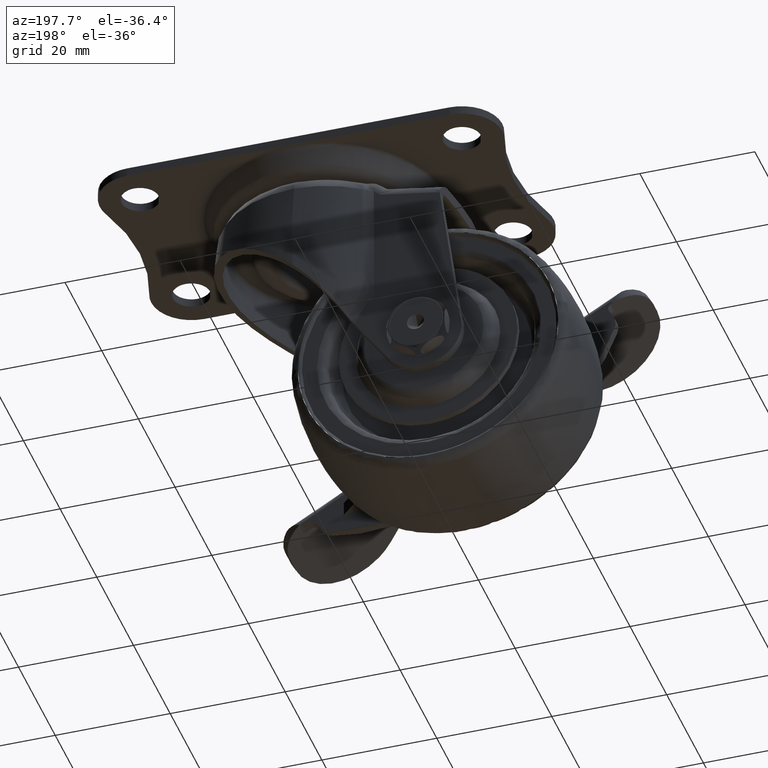
[diagram: clean part render]
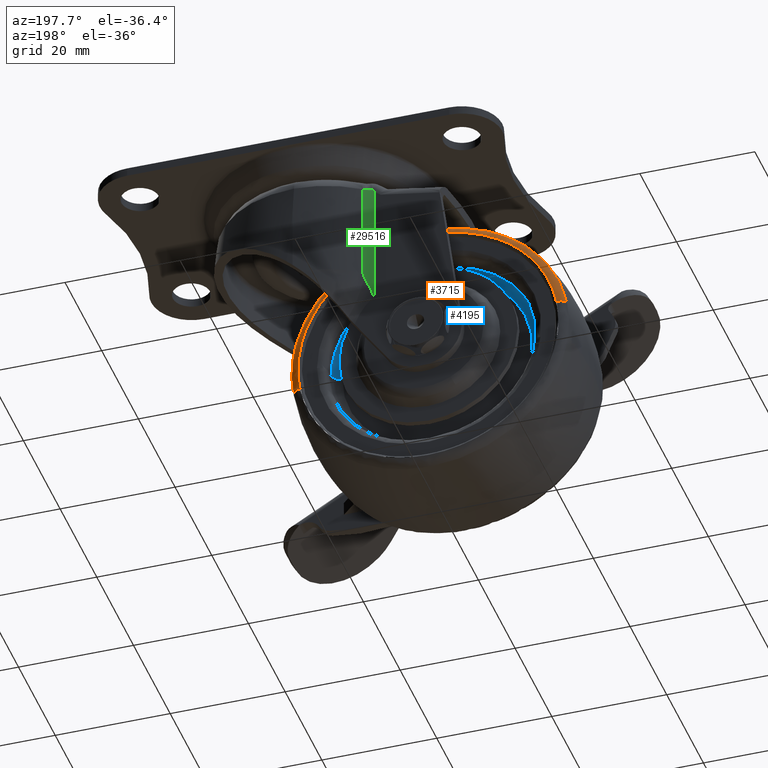
[diagram: same view with three faces highlighted in distinct colors, each labeled with its STEP entity id]
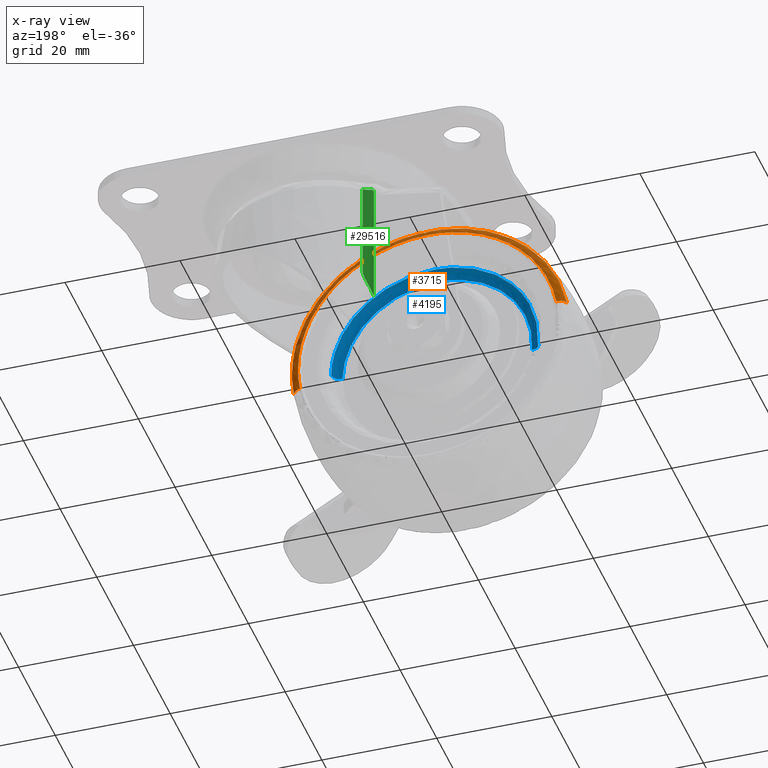
[diagram: x-ray of the same camera — body ghosted, the three highlighted faces saturated]
A machine part, auxiliary view with three faces highlighted in distinct colors.
The next image is the same camera in x-ray (body ghosted, the three faces saturated) — at least one of them is partly hidden behind the body in this view.
Their STEP definitions:

[orange] entity #3715 — the highlighted face is a freeform B-spline surface patch.
#3505=CARTESIAN_POINT('',(2.759096477785932,9.278345521659144,-42.723570209472932));
#3506=VERTEX_POINT('',#3505);
#3543=CARTESIAN_POINT('',(-44.759092877287898,9.278354426551987,-34.276417072923678));
#3544=VERTEX_POINT('',#3543);
#3553=CARTESIAN_POINT('',(-43.307897173137121,10.499999999999980,-34.534391795285103));
#3554=VERTEX_POINT('',#3553);
#3555=CARTESIAN_POINT('',(-44.759092877287898,9.278354426551987,-34.276417072923678));
#3556=CARTESIAN_POINT('',(-44.727588617504232,9.448397851253310,-34.282017491031432));
#3557=CARTESIAN_POINT('',(-44.601945361940032,9.787390261994741,-34.304352717027307));
#3558=CARTESIAN_POINT('',(-44.260683762759193,10.185511011971650,-34.365017771417648));
#3559=CARTESIAN_POINT('',(-43.808237848931192,10.441366916427720,-34.445447729034612));
#3560=CARTESIAN_POINT('',(-43.478255713883250,10.500097939494641,-34.504107666757882));
#3561=CARTESIAN_POINT('',(-43.307897173137121,10.499999999999980,-34.534391795285103));
#3562=B_SPLINE_CURVE_WITH_KNOTS('',3,(#3555,#3556,#3557,#3558,#3559,#3560,#3561),.UNSPECIFIED.,.F.,.U.,(4,1,1,1,4),(0.000000224902389,0.519064679094428,1.070527392200107,1.557193587479023,2.076258041670863),.UNSPECIFIED.);
#3563=EDGE_CURVE('',#3544,#3554,#3562,.T.);
#3586=CARTESIAN_POINT('',(1.307897173137128,10.499999999999980,-42.465608204714897));
#3587=VERTEX_POINT('',#3586);
#3604=CARTESIAN_POINT('',(2.759096477785932,9.278345521659144,-42.723570209472932));
#3605=CARTESIAN_POINT('',(2.721771017791230,9.480318267251088,-42.716936077003147));
#3606=CARTESIAN_POINT('',(2.571876132796573,9.847530803003286,-42.690292164308786));
#3607=CARTESIAN_POINT('',(2.190604175442419,10.237946892284580,-42.622518406852862));
#3608=CARTESIAN_POINT('',(1.755039080082255,10.453782369535331,-42.545092639425292));
#3609=CARTESIAN_POINT('',(1.456955621220119,10.500063120721750,-42.492105066452822));
#3610=CARTESIAN_POINT('',(1.307897173137128,10.499999999999980,-42.465608204714897));
#3611=B_SPLINE_CURVE_WITH_KNOTS('',3,(#3604,#3605,#3606,#3607,#3608,#3609,#3610),.UNSPECIFIED.,.F.,.U.,(4,1,1,1,4),(0.000000224911749,0.616399520203313,1.167871849467737,1.622086624845331,2.076266828436725),.UNSPECIFIED.);
#3612=EDGE_CURVE('',#3506,#3587,#3611,.T.);
#3617=CARTESIAN_POINT('',(-44.773466173999324,9.185021071705307,-34.273861974993984));
#3618=CARTESIAN_POINT('',(-40.547328148993330,9.185021071705309,-10.500395800994660));
#3619=CARTESIAN_POINT('',(-16.773861974993988,9.185021071705307,-14.726533826000667));
#3620=CARTESIAN_POINT('',(6.999604199005342,9.185021071705309,-18.952671851006677));
#3621=CARTESIAN_POINT('',(2.773466173999331,9.185021071705307,-42.726138025006016));
#3622=CARTESIAN_POINT('',(-44.602024673253347,10.585939127863654,-34.304338618158418));
#3623=CARTESIAN_POINT('',(-40.406363291411779,10.585939127863655,-10.702313944905079));
#3624=CARTESIAN_POINT('',(-16.804338618158429,10.585939127863654,-14.897975326746657));
#3625=CARTESIAN_POINT('',(6.797686055094921,10.585939127863655,-19.093636708588235));
#3626=CARTESIAN_POINT('',(2.602024673253345,10.585939127863654,-42.695661381841575));
#3627=CARTESIAN_POINT('',(-43.214876567783676,10.497021596120133,-34.550927790807222));
#3628=CARTESIAN_POINT('',(-39.265804358590884,10.497021596120129,-12.336051223023539));
#3629=CARTESIAN_POINT('',(-17.050927790807219,10.497021596120133,-16.285123432216334));
#3630=CARTESIAN_POINT('',(5.163948776976454,10.497021596120129,-20.234195641409116));
#3631=CARTESIAN_POINT('',(1.214876567783669,10.497021596120133,-42.449072209192792));
#3639=(BOUNDED_SURFACE()B_SPLINE_SURFACE(2,2,((#3617,#3622,#3627),(#3618,#3623,#3628),(#3619,#3624,#3629),(#3620,#3625,#3630),(#3621,#3626,#3631)),.UNSPECIFIED.,.F.,.F.,.U.)B_SPLINE_SURFACE_WITH_KNOTS((3,2,3),(3,3),(0.0,40.006698469723759,80.013396939447517),(0.0,2.379381695528104),.UNSPECIFIED.)GEOMETRIC_REPRESENTATION_ITEM()RATIONAL_B_SPLINE_SURFACE(((0.914050165617063,0.665387780648349,0.913396013996983),(0.646331070452512,0.470500211815115,0.645868515406030),(0.914050165617063,0.665387780648349,0.913396013996983),(0.646331070452512,0.470500211815115,0.645868515406030),(0.914050165617063,0.665387780648349,0.913396013996983)))REPRESENTATION_ITEM('')SURFACE());
#3640=CARTESIAN_POINT('',(-21.0,9.278350515463870,-14.368419405516850));
#3641=VERTEX_POINT('',#3640);
#3642=CARTESIAN_POINT('',(-21.0,9.278350515463870,-14.368419405516850));
#3643=CARTESIAN_POINT('',(-19.188788587890659,9.278350541425967,-14.368088750070360));
#3644=CARTESIAN_POINT('',(-16.444740097442288,9.278350522211465,-14.678850489556190));
#3645=CARTESIAN_POINT('',(-12.855206390980570,9.278350377046300,-15.723488641555150));
#3646=CARTESIAN_POINT('',(-10.325599722272541,9.278350210605790,-16.800656168095131));
#3647=CARTESIAN_POINT('',(-7.408201191073819,9.278349941691349,-18.452093750207300));
#3648=CARTESIAN_POINT('',(-4.624630409048312,9.278349573581481,-20.620717371127611));
#3649=CARTESIAN_POINT('',(-2.208339196485671,9.278349112111359,-23.257755953251539));
#3650=CARTESIAN_POINT('',(-0.335781954438647,9.278348640852641,-25.905500340080170));
#3651=CARTESIAN_POINT('',(1.283697483088194,9.278348087291535,-28.971553195050092));
#3652=CARTESIAN_POINT('',(2.411261280025404,9.278347475123182,-32.311787881297739));
#3653=CARTESIAN_POINT('',(2.999181492593903,9.278346883510952,-35.501713141359403));
#3654=CARTESIAN_POINT('',(3.221366934726062,9.278346257269723,-38.847934748393193));
#3655=CARTESIAN_POINT('',(3.018625339629414,9.278345799801743,-41.264591207978071));
#3656=CARTESIAN_POINT('',(2.759096477785932,9.278345521659144,-42.723570209472932));
#3657=B_SPLINE_CURVE_WITH_KNOTS('',3,(#3642,#3643,#3644,#3645,#3646,#3647,#3648,#3649,#3650,#3651,#3652,#3653,#3654,#3655,#3656),.UNSPECIFIED.,.F.,.U.,(4,1,1,1,1,1,1,1,1,1,1,1,4),(0.000000090873982,5.433541149917254,8.232666424341936,11.196444952601279,13.666264547258949,18.276589631907100,21.734257466979219,24.368687800939171,27.991101870845540,32.107450665927182,34.906578468674773,37.705705199965429,42.151316158055010),.UNSPECIFIED.);
#3658=EDGE_CURVE('',#3641,#3506,#3657,.T.);
#3659=ORIENTED_EDGE('',*,*,#3658,.T.);
#3660=ORIENTED_EDGE('',*,*,#3612,.T.);
#3661=CARTESIAN_POINT('',(-21.0,10.500000000000000,-15.842367200000000));
#3662=VERTEX_POINT('',#3661);
#3663=CARTESIAN_POINT('',(-21.0,10.500000000000000,-15.842367200000000));
#3664=CARTESIAN_POINT('',(-19.917839468591051,10.500000000000000,-15.842324376036910));
#3665=CARTESIAN_POINT('',(-17.547371683405402,10.500000000000020,-16.012479710729000));
#3666=CARTESIAN_POINT('',(-13.869984136138900,10.500000000000011,-16.867810159061332));
#3667=CARTESIAN_POINT('',(-10.446787048611290,10.499999999999901,-18.339416644185221));
#3668=CARTESIAN_POINT('',(-7.439198729414627,10.500000000000190,-20.251665296559171));
#3669=CARTESIAN_POINT('',(-5.243838751105595,10.499999999999890,-22.137173949070320));
#3670=CARTESIAN_POINT('',(-3.368726143651366,10.500000000000041,-24.197549064953769));
#3671=CARTESIAN_POINT('',(-1.727965880079672,10.499999999999931,-26.451580789455381));
#3672=CARTESIAN_POINT('',(-0.065532208682511,10.500000000000030,-29.547581741638400));
#3673=CARTESIAN_POINT('',(1.114594152754655,10.499999999999860,-33.083103539470613));
#3674=CARTESIAN_POINT('',(1.613860162771141,10.500000000000220,-36.352590290536590));
#3675=CARTESIAN_POINT('',(1.701382166590912,10.499999999999410,-39.395197907599581));
#3676=CARTESIAN_POINT('',(1.515426685954867,10.500000000000890,-41.298685365498592));
#3677=CARTESIAN_POINT('',(1.307897173137128,10.499999999999980,-42.465608204714897));
#3678=B_SPLINE_CURVE_WITH_KNOTS('',3,(#3663,#3664,#3665,#3666,#3667,#3668,#3669,#3670,#3671,#3672,#3673,#3674,#3675,#3676,#3677),.UNSPECIFIED.,.F.,.U.,(4,1,1,1,1,1,1,1,1,1,1,1,4),(0.000000090037830,3.246488764020384,7.111429133425162,11.285558714741221,14.377516750925791,17.778644095271009,19.942921211220121,22.725671490906560,26.126812945410560,30.455545266937310,33.856680941096123,36.021055440638058,39.576742104665762),.UNSPECIFIED.);
#3679=EDGE_CURVE('',#3662,#3587,#3678,.T.);
#3680=ORIENTED_EDGE('',*,*,#3679,.F.);
#3681=CARTESIAN_POINT('',(-43.307897173137121,10.499999999999980,-34.534391795285103));
#3682=CARTESIAN_POINT('',(-43.106300841236113,10.499999999999989,-33.399925157267681));
#3683=CARTESIAN_POINT('',(-42.570633942650893,10.499999999999970,-31.321745283571239));
#3684=CARTESIAN_POINT('',(-41.478601680057317,10.500000000000000,-28.694102747069170));
#3685=CARTESIAN_POINT('',(-40.181735793889302,10.500000000000000,-26.351362972604811));
#3686=CARTESIAN_POINT('',(-38.510871707932012,10.500000000000011,-23.997268947258931));
#3687=CARTESIAN_POINT('',(-36.032414073689253,10.499999999999940,-21.398189136369201));
#3688=CARTESIAN_POINT('',(-33.109875334179328,10.499999999999821,-19.233560100035341));
#3689=CARTESIAN_POINT('',(-29.628331493709041,10.500000000000290,-17.435330913905879));
#3690=CARTESIAN_POINT('',(-25.691194712130901,10.499999999999719,-16.171676283312980));
#3691=CARTESIAN_POINT('',(-22.604924227473450,10.500000000000201,-15.842093856873110));
#3692=CARTESIAN_POINT('',(-21.0,10.500000000000000,-15.842367200000000));
#3693=B_SPLINE_CURVE_WITH_KNOTS('',3,(#3681,#3682,#3683,#3684,#3685,#3686,#3687,#3688,#3689,#3690,#3691,#3692),.UNSPECIFIED.,.F.,.U.,(4,1,1,1,1,1,1,1,1,4),(0.000000059278598,3.456709241584637,6.419640162571220,8.518384221513504,11.481314709105380,15.061523730458379,19.258919811304729,22.345315732999708,26.789709012800522,31.604426521980319),.UNSPECIFIED.);
#3694=EDGE_CURVE('',#3554,#3662,#3693,.T.);
#3695=ORIENTED_EDGE('',*,*,#3694,.F.);
#3696=ORIENTED_EDGE('',*,*,#3563,.F.);
#3697=CARTESIAN_POINT('',(-44.759092877287898,9.278354426551987,-34.276417072923678));
#3698=CARTESIAN_POINT('',(-44.513741403454837,9.278354274308228,-32.895524602385159));
#3699=CARTESIAN_POINT('',(-43.884213649116113,9.278353998521810,-30.559113027670879));
#3700=CARTESIAN_POINT('',(-42.580024500858237,9.278353604559316,-27.582612422960729));
#3701=CARTESIAN_POINT('',(-40.923604734118307,9.278353193273935,-24.738198106979709));
#3702=CARTESIAN_POINT('',(-38.630977056956709,9.278352722737312,-21.838551582638111));
#3703=CARTESIAN_POINT('',(-35.699265350758758,9.278352226903154,-19.243002176901811));
#3704=CARTESIAN_POINT('',(-33.040394588185812,9.278351838305378,-17.530919710810409));
#3705=CARTESIAN_POINT('',(-30.449966585172561,9.278351495345460,-16.237339062257458));
#3706=CARTESIAN_POINT('',(-28.054925174739260,9.278351209205100,-15.366547361174311));
#3707=CARTESIAN_POINT('',(-24.769186528500079,9.278350855710263,-14.582315104123690));
#3708=CARTESIAN_POINT('',(-22.534017457321109,9.278350645637087,-14.368233660450670));
#3709=CARTESIAN_POINT('',(-21.0,9.278350515463870,-14.368419405516850));
#3710=B_SPLINE_CURVE_WITH_KNOTS('',3,(#3697,#3698,#3699,#3700,#3701,#3702,#3703,#3704,#3705,#3706,#3707,#3708,#3709),.UNSPECIFIED.,.F.,.U.,(4,1,1,1,1,1,1,1,1,1,4),(0.000000057324932,4.207541843063844,7.231723763356364,9.729960257396712,14.069013187969031,18.276503312447630,21.432193854902280,23.535970624092549,26.954614485566911,29.058391254755811,33.660390050188219),.UNSPECIFIED.);
#3711=EDGE_CURVE('',#3544,#3641,#3710,.T.);
#3712=ORIENTED_EDGE('',*,*,#3711,.T.);
#3713=EDGE_LOOP('',(#3659,#3660,#3680,#3695,#3696,#3712));
#3714=FACE_OUTER_BOUND('',#3713,.T.);
#3715=ADVANCED_FACE('',(#3714),#3639,.T.);

[blue] entity #4195 — the highlighted face is a freeform B-spline surface patch.
#1475=CARTESIAN_POINT('',(-34.489159836170927,6.999999999991378,-26.565799407433751));
#1476=VERTEX_POINT('',#1475);
#1482=CARTESIAN_POINT('',(-38.966780266843330,6.999999999323070,-39.755939374470330));
#1483=VERTEX_POINT('',#1482);
#1484=CARTESIAN_POINT('',(-38.966780266843330,6.999999999323070,-39.755939374470330));
#1485=CARTESIAN_POINT('',(-39.076406385628879,6.999999999418946,-38.195400380189227));
#1486=CARTESIAN_POINT('',(-38.939307079297848,6.999999999549182,-35.945921983247779));
#1487=CARTESIAN_POINT('',(-38.128786880356380,6.999999999719877,-32.726321873008253));
#1488=CARTESIAN_POINT('',(-36.899032665652150,6.999999999864500,-29.754644018334449));
#1489=CARTESIAN_POINT('',(-35.451937624685790,6.999999999951841,-27.653506682725371));
#1490=CARTESIAN_POINT('',(-34.489159836170927,6.999999999991378,-26.565799407433751));
#1491=B_SPLINE_CURVE_WITH_KNOTS('',3,(#1484,#1485,#1486,#1487,#1488,#1489,#1490),.UNSPECIFIED.,.F.,.U.,(4,1,1,1,4),(0.000000021543839,4.692946031788063,6.704215220559986,9.944557438145004,14.302287091047120),.UNSPECIFIED.);
#1492=EDGE_CURVE('',#1483,#1476,#1491,.T.);
#1512=CARTESIAN_POINT('',(-2.990798043158804,6.999999999316543,-38.273677780403297));
#1513=VERTEX_POINT('',#1512);
#1529=CARTESIAN_POINT('',(-21.0,7.0,-20.489376000000000));
#1530=VERTEX_POINT('',#1529);
#1531=CARTESIAN_POINT('',(-21.0,7.0,-20.489376000000000));
#1532=CARTESIAN_POINT('',(-20.232620391467979,7.000000000000012,-20.489365575671389));
#1533=CARTESIAN_POINT('',(-18.478569503926209,6.999999999995658,-20.601583206443848));
#1534=CARTESIAN_POINT('',(-16.111787868075240,6.999999999976351,-21.106052095384491));
#1535=CARTESIAN_POINT('',(-13.427215761334249,6.999999999938980,-22.076657103699699));
#1536=CARTESIAN_POINT('',(-11.109302131959829,6.999999999890100,-23.349381653538760));
#1537=CARTESIAN_POINT('',(-9.094782598848624,6.999999999829182,-24.934257405609522));
#1538=CARTESIAN_POINT('',(-7.428673907965291,6.999999999765964,-26.579447184111821));
#1539=CARTESIAN_POINT('',(-5.965901234185523,6.999999999693632,-28.461012358074768));
#1540=CARTESIAN_POINT('',(-4.764424432180773,6.999999999611417,-30.600619227621252));
#1541=CARTESIAN_POINT('',(-3.957523317729330,6.999999999535948,-32.563935448274393));
#1542=CARTESIAN_POINT('',(-3.238394858196305,6.999999999439991,-35.060874379830892));
#1543=CARTESIAN_POINT('',(-3.006652641298375,6.999999999365809,-36.994770964123092));
#1544=CARTESIAN_POINT('',(-2.990798043158804,6.999999999316543,-38.273677780403297));
#1545=B_SPLINE_CURVE_WITH_KNOTS('',3,(#1531,#1532,#1533,#1534,#1535,#1536,#1537,#1538,#1539,#1540,#1541,#1542,#1543,#1544),.UNSPECIFIED.,.F.,.U.,(4,1,1,1,1,1,1,1,1,1,1,4),(0.000000081235733,2.302148305600756,5.262129301312655,7.235440499871746,10.853169386549940,13.155391867982230,14.909345256509710,17.869323268271120,20.281153669019400,22.254461720927139,24.227782522889839,28.064737169980280),.UNSPECIFIED.);
#1546=EDGE_CURVE('',#1530,#1513,#1545,.T.);
#1548=CARTESIAN_POINT('',(-23.876817258640511,7.000000000061565,-20.720615890032519));
#1549=VERTEX_POINT('',#1548);
#1550=CARTESIAN_POINT('',(-23.876817258640511,7.000000000061565,-20.720615890032519));
#1551=CARTESIAN_POINT('',(-22.926124318557299,7.000000000045851,-20.566735401296938));
#1552=CARTESIAN_POINT('',(-21.963065108815840,7.000000000025210,-20.489346122865999));
#1553=CARTESIAN_POINT('',(-21.0,7.0,-20.489376000000000));
#1554=B_SPLINE_CURVE_WITH_KNOTS('',3,(#1550,#1551,#1552,#1553),.UNSPECIFIED.,.F.,.U.,(4,4),(5.330345E-010,2.889204836596740),.UNSPECIFIED.);
#1555=EDGE_CURVE('',#1549,#1530,#1554,.T.);
#1591=CARTESIAN_POINT('',(-34.489159836170927,6.999999999991378,-26.565799407433751));
#1592=CARTESIAN_POINT('',(-33.764284629112971,7.000000000021200,-25.746315479776300));
#1593=CARTESIAN_POINT('',(-32.117509031916889,7.000000000070415,-24.195794699179871));
#1594=CARTESIAN_POINT('',(-29.391950011850678,7.000000000102584,-22.457228225955131));
#1595=CARTESIAN_POINT('',(-26.586206178970301,7.000000000097944,-21.301176850330091));
#1596=CARTESIAN_POINT('',(-24.766253381780889,7.000000000076284,-20.864483188727100));
#1597=CARTESIAN_POINT('',(-23.876817258640511,7.000000000061565,-20.720615890032519));
#1598=B_SPLINE_CURVE_WITH_KNOTS('',3,(#1591,#1592,#1593,#1594,#1595,#1596,#1597),.UNSPECIFIED.,.F.,.U.,(4,1,1,1,4),(6.194460E-009,3.282219089059614,6.757500765484806,9.653584074430803,12.356583783096591),.UNSPECIFIED.);
#1599=EDGE_CURVE('',#1476,#1549,#1598,.T.);
#4100=CARTESIAN_POINT('',(-37.366379040385127,5.503631023676504,-39.644064948780347));
#4101=CARTESIAN_POINT('',(-37.399121656099688,5.503631023676502,-39.175666664111830));
#4102=CARTESIAN_POINT('',(-37.405021930796465,5.503631023676502,-38.706162437589050));
#4103=CARTESIAN_POINT('',(-37.611184368385523,5.503631023676505,-22.301140506792606));
#4104=CARTESIAN_POINT('',(-21.206162437589054,5.503631023676502,-22.094978069203542));
#4105=CARTESIAN_POINT('',(-4.801140506792604,5.503631023676505,-21.888815631614484));
#4106=CARTESIAN_POINT('',(-4.594978069203541,5.503631023676502,-38.293837562410950));
#4107=CARTESIAN_POINT('',(-39.082803091629060,5.383693084090333,-39.764048763735779));
#4108=CARTESIAN_POINT('',(-39.118979589265479,5.383693084090332,-39.246527207549285));
#4109=CARTESIAN_POINT('',(-39.125498655288879,5.383693084090331,-38.727783723853271));
#4110=CARTESIAN_POINT('',(-39.353282379142158,5.383693084090332,-20.602285068564392));
#4111=CARTESIAN_POINT('',(-21.227783723853282,5.383693084090331,-20.374501344711113));
#4112=CARTESIAN_POINT('',(-3.102285068564394,5.383693084090332,-20.146717620857832));
#4113=CARTESIAN_POINT('',(-2.874501344711113,5.383693084090331,-38.272216276146715));
#4114=CARTESIAN_POINT('',(-38.963158218160324,7.104305737678883,-39.755685184614272));
#4115=CARTESIAN_POINT('',(-38.999095353986505,7.104305737678883,-39.241587809999288));
#4116=CARTESIAN_POINT('',(-39.005571286607100,7.104305737678882,-38.726276592758573));
#4117=CARTESIAN_POINT('',(-39.231847879365695,7.104305737678882,-20.720705306151487));
#4118=CARTESIAN_POINT('',(-21.226276592758587,7.104305737678882,-20.494428713392889));
#4119=CARTESIAN_POINT('',(-3.220705306151477,7.104305737678882,-20.268152120634323));
#4120=CARTESIAN_POINT('',(-2.994428713392894,7.104305737678882,-38.273723407241434));
#4128=(BOUNDED_SURFACE()B_SPLINE_SURFACE(2,2,((#4100,#4107,#4114),(#4101,#4108,#4115),(#4102,#4109,#4116),(#4103,#4110,#4117),(#4104,#4111,#4118),(#4105,#4112,#4119),(#4106,#4113,#4120)),.UNSPECIFIED.,.F.,.F.,.U.)B_SPLINE_SURFACE_WITH_KNOTS((3,2,2,3),(3,3),(0.0,1.193397379646738,31.028360323653072,60.863323267659403),(0.0,2.733562205864522),.UNSPECIFIED.)GEOMETRIC_REPRESENTATION_ITEM()RATIONAL_B_SPLINE_SURFACE(((0.895730018595575,0.587800071602471,0.895729757417794),(0.905606779348395,0.594281444959602,0.905606515290739),(0.916342387972045,0.601326415415735,0.916342120784090),(0.647951916423707,0.425201986047065,0.647951727493292),(0.916342387972045,0.601326415415735,0.916342120784090),(0.647951916423707,0.425201986047065,0.647951727493292),(0.916342387972045,0.601326415415735,0.916342120784090)))REPRESENTATION_ITEM('')SURFACE());
#4129=ORIENTED_EDGE('',*,*,#1555,.T.);
#4130=ORIENTED_EDGE('',*,*,#1546,.T.);
#4131=CARTESIAN_POINT('',(-4.490679594945762,5.500000000000000,-38.292526839554583));
#4132=VERTEX_POINT('',#4131);
#4133=CARTESIAN_POINT('',(-4.490679594945762,5.500000000000000,-38.292526839554583));
#4134=CARTESIAN_POINT('',(-4.294314055137503,5.499787689452652,-38.290059107583879));
#4135=CARTESIAN_POINT('',(-3.914054968667608,5.575787674044185,-38.285280379571532));
#4136=CARTESIAN_POINT('',(-3.495595992337163,5.847948143116714,-38.280021592319358));
#4137=CARTESIAN_POINT('',(-3.241360498790990,6.150421139526097,-38.276826606785527));
#4138=CARTESIAN_POINT('',(-3.049491037081933,6.509258309148224,-38.274415377149523));
#4139=CARTESIAN_POINT('',(-2.990577411340136,6.803609006373859,-38.273675007727959));
#4140=CARTESIAN_POINT('',(-2.990798043158804,6.999999999316543,-38.273677780403297));
#4141=B_SPLINE_CURVE_WITH_KNOTS('',3,(#4133,#4134,#4135,#4136,#4137,#4138,#4139,#4140),.UNSPECIFIED.,.F.,.U.,(4,1,1,1,1,4),(0.000000285956295,0.589064493924789,1.141351331199181,1.472636971397073,1.767190287693384,2.356253611292268),.UNSPECIFIED.);
#4142=EDGE_CURVE('',#4132,#1513,#4141,.T.);
#4143=ORIENTED_EDGE('',*,*,#4142,.F.);
#4144=CARTESIAN_POINT('',(-21.0,5.500000000000000,-21.989376000000000));
#4145=VERTEX_POINT('',#4144);
#4146=CARTESIAN_POINT('',(-21.0,5.500000000000000,-21.989376000000000));
#4147=CARTESIAN_POINT('',(-19.961528376282271,5.500000000000006,-21.989272551277889));
#4148=CARTESIAN_POINT('',(-17.851107297544502,5.499999999999976,-22.189102230098658));
#4149=CARTESIAN_POINT('',(-15.074140169529480,5.500000000000048,-23.005909194134251));
#4150=CARTESIAN_POINT('',(-12.659166214326570,5.499999999999910,-24.182931075127151));
#4151=CARTESIAN_POINT('',(-10.745347300673810,5.500000000000092,-25.490991702520891));
#4152=CARTESIAN_POINT('',(-9.183066439364795,5.499999999999934,-26.916274505593169));
#4153=CARTESIAN_POINT('',(-7.664476533290276,5.500000000000030,-28.662990307336699));
#4154=CARTESIAN_POINT('',(-6.358121339953237,5.499999999999985,-30.703297062691739));
#4155=CARTESIAN_POINT('',(-5.385416629583397,5.500000000000003,-32.990647317146568));
#4156=CARTESIAN_POINT('',(-4.702101243086653,5.500000000000005,-35.447601831693511));
#4157=CARTESIAN_POINT('',(-4.504401252751284,5.500000000000002,-37.187132192519201));
#4158=CARTESIAN_POINT('',(-4.490679594945762,5.500000000000000,-38.292526839554583));
#4159=B_SPLINE_CURVE_WITH_KNOTS('',3,(#4146,#4147,#4148,#4149,#4150,#4151,#4152,#4153,#4154,#4155,#4156,#4157,#4158),.UNSPECIFIED.,.F.,.U.,(4,1,1,1,1,1,1,1,1,1,4),(0.000000081983238,3.115404915006089,6.331349282531257,8.642805661037571,11.155245100839380,13.265660694062490,14.974125500708890,18.089561489390601,20.501521498031799,22.410993830805989,25.727388633885521),.UNSPECIFIED.);
#4160=EDGE_CURVE('',#4145,#4132,#4159,.T.);
#4161=ORIENTED_EDGE('',*,*,#4160,.F.);
#4162=CARTESIAN_POINT('',(-37.470431766842808,5.500000000000000,-39.651339498161803));
#4163=VERTEX_POINT('',#4162);
#4164=CARTESIAN_POINT('',(-37.470431766842808,5.500000000000000,-39.651339498161803));
#4165=CARTESIAN_POINT('',(-37.574272204248722,5.499999999999980,-38.173585920338013));
#4166=CARTESIAN_POINT('',(-37.435173358240817,5.500000000000032,-36.042826678149048));
#4167=CARTESIAN_POINT('',(-36.626798721144347,5.499999999999992,-32.967704118336897));
#4168=CARTESIAN_POINT('',(-35.537223583115541,5.500000000000025,-30.466364944362990));
#4169=CARTESIAN_POINT('',(-33.997298510675989,5.499999999999943,-28.215168612197459));
#4170=CARTESIAN_POINT('',(-32.431108986339233,5.500000000000050,-26.535810265100341));
#4171=CARTESIAN_POINT('',(-30.924289201420951,5.499999999999896,-25.253841500013529));
#4172=CARTESIAN_POINT('',(-28.918277155125502,5.500000000000204,-23.930308592245069));
#4173=CARTESIAN_POINT('',(-26.656557182573000,5.499999999999965,-22.912227599532908));
#4174=CARTESIAN_POINT('',(-23.892041328620572,5.499999999999989,-22.168760077209349));
#4175=CARTESIAN_POINT('',(-22.093363320064981,5.500000000000011,-21.989216596415648));
#4176=CARTESIAN_POINT('',(-21.0,5.500000000000000,-21.989376000000000));
#4177=B_SPLINE_CURVE_WITH_KNOTS('',3,(#4164,#4165,#4166,#4167,#4168,#4169,#4170,#4171,#4172,#4173,#4174,#4175,#4176),.UNSPECIFIED.,.F.,.U.,(4,1,1,1,1,1,1,1,1,1,4),(0.000000092900969,4.443977949904660,6.348550426547405,9.522848306682487,12.591314602032540,14.495838859719200,16.400403294119680,18.516595828154880,21.690891934878820,23.807092298782798,27.087148540010400),.UNSPECIFIED.);
#4178=EDGE_CURVE('',#4163,#4145,#4177,.T.);
#4179=ORIENTED_EDGE('',*,*,#4178,.F.);
#4180=CARTESIAN_POINT('',(-37.470431766842808,5.500000000000000,-39.651339498161803));
#4181=CARTESIAN_POINT('',(-37.629587526805409,5.499907799363047,-39.662465029946880));
#4182=CARTESIAN_POINT('',(-37.886601014039890,5.541534245999276,-39.680431151451288));
#4183=CARTESIAN_POINT('',(-38.280273270281597,5.716360221868138,-39.707950188158591));
#4184=CARTESIAN_POINT('',(-38.597154687370370,5.977073266236679,-39.730101282659270));
#4185=CARTESIAN_POINT('',(-38.886843954267349,6.423501195018001,-39.750351552895417));
#4186=CARTESIAN_POINT('',(-38.967136481400011,6.779029679266190,-39.755964275078803));
#4187=CARTESIAN_POINT('',(-38.966780266843330,6.999999999323070,-39.755939374470330));
#4188=B_SPLINE_CURVE_WITH_KNOTS('',3,(#4180,#4181,#4182,#4183,#4184,#4185,#4186,#4187),.UNSPECIFIED.,.F.,.U.,(4,1,1,1,1,4),(0.000000285952380,0.478605318208924,0.773160046357106,1.288575075530177,1.693553628177465,2.356253612582268),.UNSPECIFIED.);
#4189=EDGE_CURVE('',#4163,#1483,#4188,.T.);
#4190=ORIENTED_EDGE('',*,*,#4189,.T.);
#4191=ORIENTED_EDGE('',*,*,#1492,.T.);
#4192=ORIENTED_EDGE('',*,*,#1599,.T.);
#4193=EDGE_LOOP('',(#4129,#4130,#4143,#4161,#4179,#4190,#4191,#4192));
#4194=FACE_OUTER_BOUND('',#4193,.T.);
#4195=ADVANCED_FACE('',(#4194),#4128,.F.);

[green] entity #29516 — the highlighted face is a freeform B-spline surface patch.
#24918=CARTESIAN_POINT('',(-11.057311676861120,15.080645161290350,-7.399998799999970));
#24919=VERTEX_POINT('',#24918);
#25076=CARTESIAN_POINT('',(-12.540563187067880,14.514112644622539,-7.399998799999970));
#25077=VERTEX_POINT('',#25076);
#25078=CARTESIAN_POINT('',(-12.540563187067880,14.514112644622539,-7.399998799999970));
#25079=CARTESIAN_POINT('',(-12.290648246039170,14.538371416951840,-7.399998799999985));
#25080=CARTESIAN_POINT('',(-11.764129841987719,14.657663895076260,-7.399998799999954));
#25081=CARTESIAN_POINT('',(-11.286732642730080,14.912293992391859,-7.399998799999978));
#25082=CARTESIAN_POINT('',(-11.057311676861120,15.080645161290350,-7.399998799999970));
#25083=B_SPLINE_CURVE_WITH_KNOTS('',3,(#25078,#25079,#25080,#25081,#25082),.UNSPECIFIED.,.F.,.U.,(4,1,4),(0.000000024868346,0.753260346413116,1.606923384079818),.UNSPECIFIED.);
#25084=EDGE_CURVE('',#25077,#24919,#25083,.T.);
#26376=CARTESIAN_POINT('',(-12.831211945876300,14.500000000000000,-7.796692478680970));
#26377=VERTEX_POINT('',#26376);
#26378=CARTESIAN_POINT('',(-12.831211945876300,14.500000000000000,-7.796692478680970));
#26379=CARTESIAN_POINT('',(-12.737329620115920,14.499837905247910,-7.662185812117734));
#26380=CARTESIAN_POINT('',(-12.640355206072710,14.504546036275819,-7.529828998719477));
#26381=CARTESIAN_POINT('',(-12.540563187067880,14.514112644622539,-7.399998799999970));
#26382=B_SPLINE_CURVE_WITH_KNOTS('',3,(#26378,#26379,#26380,#26381),.UNSPECIFIED.,.F.,.U.,(4,4),(1.241319E-010,0.492094606545746),.UNSPECIFIED.);
#26383=EDGE_CURVE('',#26377,#25077,#26382,.T.);
#29109=CARTESIAN_POINT('',(-11.331211945876300,14.901923788646700,-25.592952740685298));
#29110=VERTEX_POINT('',#29109);
#29118=CARTESIAN_POINT('',(-11.057311676861120,15.080645161290350,-24.557849696605000));
#29119=VERTEX_POINT('',#29118);
#29120=CARTESIAN_POINT('',(-11.057311676861120,15.080645161290350,-24.557849696605000));
#29121=CARTESIAN_POINT('',(-11.089424681557119,15.057099517320450,-24.735026545800888));
#29122=CARTESIAN_POINT('',(-11.124813003178620,15.032040679492029,-24.911075439401291));
#29123=CARTESIAN_POINT('',(-11.188708830061930,14.989454510595239,-25.171424501628149));
#29124=CARTESIAN_POINT('',(-11.211827947906530,14.974417443516559,-25.257580470189311));
#29125=CARTESIAN_POINT('',(-11.251451481601420,14.949588303599290,-25.385113406192950));
#29126=CARTESIAN_POINT('',(-11.265496371949890,14.940927133855229,-25.427336454858960));
#29127=CARTESIAN_POINT('',(-11.296086548599151,14.922460629338740,-25.510923366360611));
#29128=CARTESIAN_POINT('',(-11.312599045995761,14.912669951403130,-25.552298436176820));
#29129=CARTESIAN_POINT('',(-11.331211945876300,14.901923788646700,-25.592952740685298));
#29130=B_SPLINE_CURVE_WITH_KNOTS('',3,(#29120,#29121,#29122,#29123,#29124,#29125,#29126,#29127,#29128,#29129),.UNSPECIFIED.,.F.,.U.,(4,2,2,2,4),(0.0,0.500000000000005,0.750000000000008,0.875000000000004,1.0),.UNSPECIFIED.);
#29131=EDGE_CURVE('',#29119,#29110,#29130,.T.);
#29379=CARTESIAN_POINT('',(-12.831211945876300,14.500000000000000,-29.443668887792452));
#29380=VERTEX_POINT('',#29379);
#29398=CARTESIAN_POINT('',(-11.331211945876300,14.901923788646700,-25.592952740685298));
#29399=CARTESIAN_POINT('',(-11.471922301168719,14.820684627140860,-25.900292363649349));
#29400=CARTESIAN_POINT('',(-11.609528146091760,14.756256674168551,-26.211838876270381));
#29401=CARTESIAN_POINT('',(-11.877298152959730,14.652073171518600,-26.842333620199710));
#29402=CARTESIAN_POINT('',(-12.007518368253310,14.612389901712570,-27.161419039933620));
#29403=CARTESIAN_POINT('',(-12.259362195923410,14.552161630443811,-27.805904990480030));
#29404=CARTESIAN_POINT('',(-12.380716801899281,14.531703328081690,-28.130605714187439));
#29405=CARTESIAN_POINT('',(-12.555392845941901,14.512131767308270,-28.620961514003479));
#29406=CARTESIAN_POINT('',(-12.612364034637491,14.507473218026750,-28.784883179840790));
#29407=CARTESIAN_POINT('',(-12.695904040146861,14.502923172837020,-29.031474429027909));
#29408=CARTESIAN_POINT('',(-12.723431244085900,14.501813222330769,-29.113789647363859));
#29409=CARTESIAN_POINT('',(-12.777840771977040,14.500351328694370,-29.278657157437799));
#29410=CARTESIAN_POINT('',(-12.804612189332889,14.500000000000000,-29.361246529662520));
#29411=CARTESIAN_POINT('',(-12.831211945876300,14.500000000000000,-29.443668887792501));
#29412=B_SPLINE_CURVE_WITH_KNOTS('',3,(#29398,#29399,#29400,#29401,#29402,#29403,#29404,#29405,#29406,#29407,#29408,#29409,#29410,#29411),.UNSPECIFIED.,.F.,.U.,(4,2,2,2,2,2,4),(0.0,0.250000000000000,0.500000000000000,0.750000000000000,0.875000000000000,0.937500000000000,1.0),.UNSPECIFIED.);
#29413=EDGE_CURVE('',#29110,#29380,#29412,.T.);
#29486=CARTESIAN_POINT('',(-10.983420212161009,15.136598699159739,-29.994760639987259));
#29487=CARTESIAN_POINT('',(-10.983420212161009,15.136598699159739,-6.835129754000286));
#29488=CARTESIAN_POINT('',(-11.838993707337526,14.467680715823175,-29.994760639987259));
#29489=CARTESIAN_POINT('',(-11.838993707337526,14.467680715823175,-6.835129754000287));
#29490=CARTESIAN_POINT('',(-12.924496753257177,14.501450693299859,-29.994760639987266));
#29491=CARTESIAN_POINT('',(-12.924496753257177,14.501450693299859,-6.835129754000287));
#29499=(BOUNDED_SURFACE()B_SPLINE_SURFACE(1,2,((#29486,#29488,#29490),(#29487,#29489,#29491)),.UNSPECIFIED.,.F.,.F.,.U.)B_SPLINE_SURFACE_WITH_KNOTS((2,2),(3,3),(0.0,23.159630885986971),(0.0,2.105200550330386),.UNSPECIFIED.)GEOMETRIC_REPRESENTATION_ITEM()RATIONAL_B_SPLINE_SURFACE(((0.998427477335760,0.935594430492474,0.991609880627614),(0.998427477335760,0.935594430492474,0.991609880627614)))REPRESENTATION_ITEM('')SURFACE());
#29500=ORIENTED_EDGE('',*,*,#26383,.T.);
#29501=ORIENTED_EDGE('',*,*,#25084,.T.);
#29502=CARTESIAN_POINT('',(-11.057311676861120,15.080645161290350,-24.557849696605000));
#29503=CARTESIAN_POINT('',(-11.057311676861120,15.080645161290350,-7.399998799999970));
#29504=QUASI_UNIFORM_CURVE('',1,(#29502,#29503),.UNSPECIFIED.,.F.,.U.);
#29505=EDGE_CURVE('',#29119,#24919,#29504,.T.);
#29506=ORIENTED_EDGE('',*,*,#29505,.F.);
#29507=ORIENTED_EDGE('',*,*,#29131,.T.);
#29508=ORIENTED_EDGE('',*,*,#29413,.T.);
#29509=CARTESIAN_POINT('',(-12.831211945876300,14.500000000000000,-7.796692478680970));
#29510=CARTESIAN_POINT('',(-12.831211945876300,14.500000000000000,-29.443668887792452));
#29511=QUASI_UNIFORM_CURVE('',1,(#29509,#29510),.UNSPECIFIED.,.F.,.U.);
#29512=EDGE_CURVE('',#26377,#29380,#29511,.T.);
#29513=ORIENTED_EDGE('',*,*,#29512,.F.);
#29514=EDGE_LOOP('',(#29500,#29501,#29506,#29507,#29508,#29513));
#29515=FACE_OUTER_BOUND('',#29514,.T.);
#29516=ADVANCED_FACE('',(#29515),#29499,.F.);